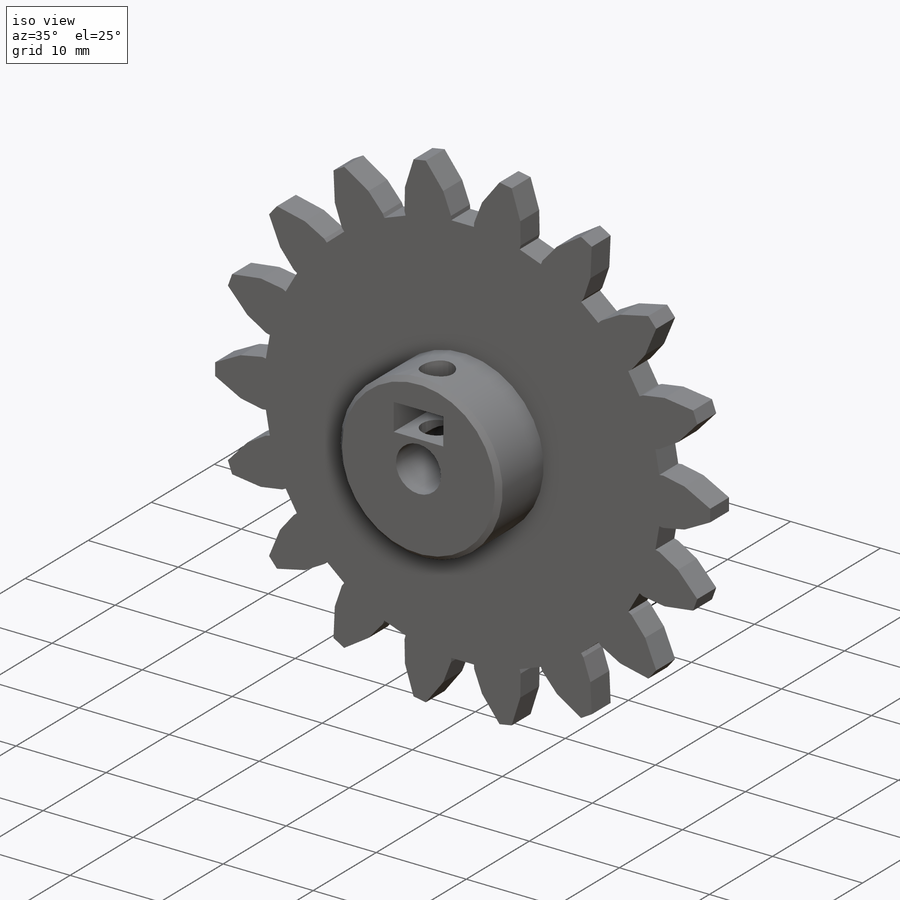
[diagram: iso view]
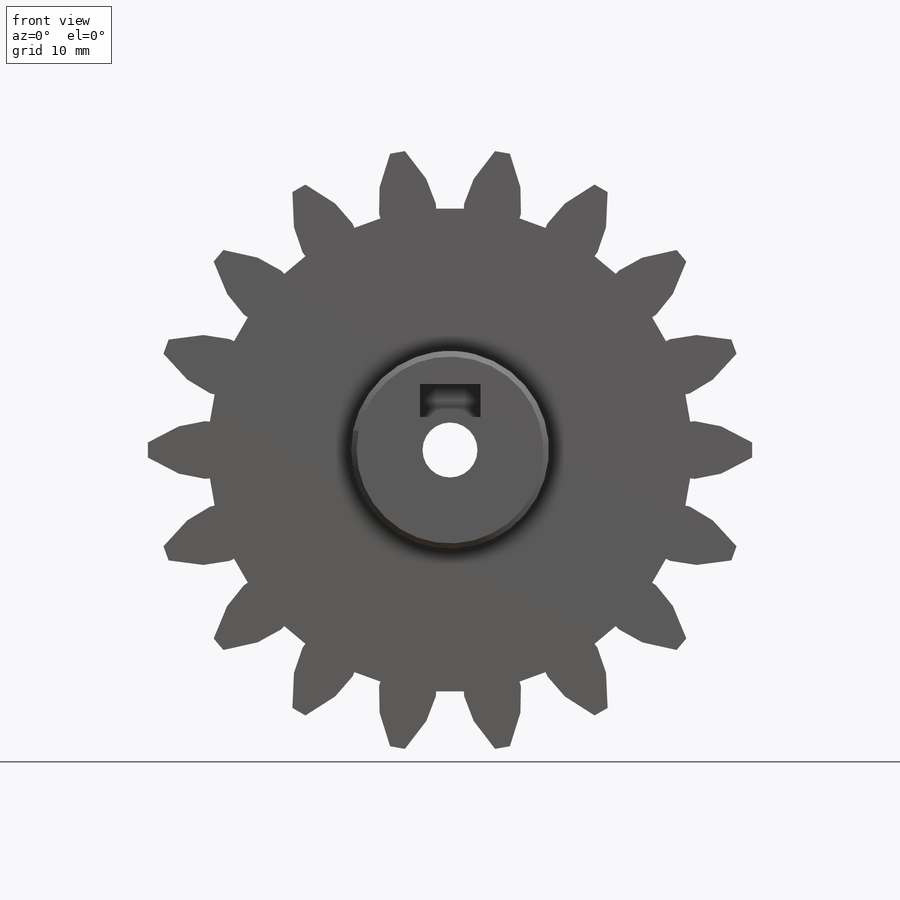
[diagram: front view]
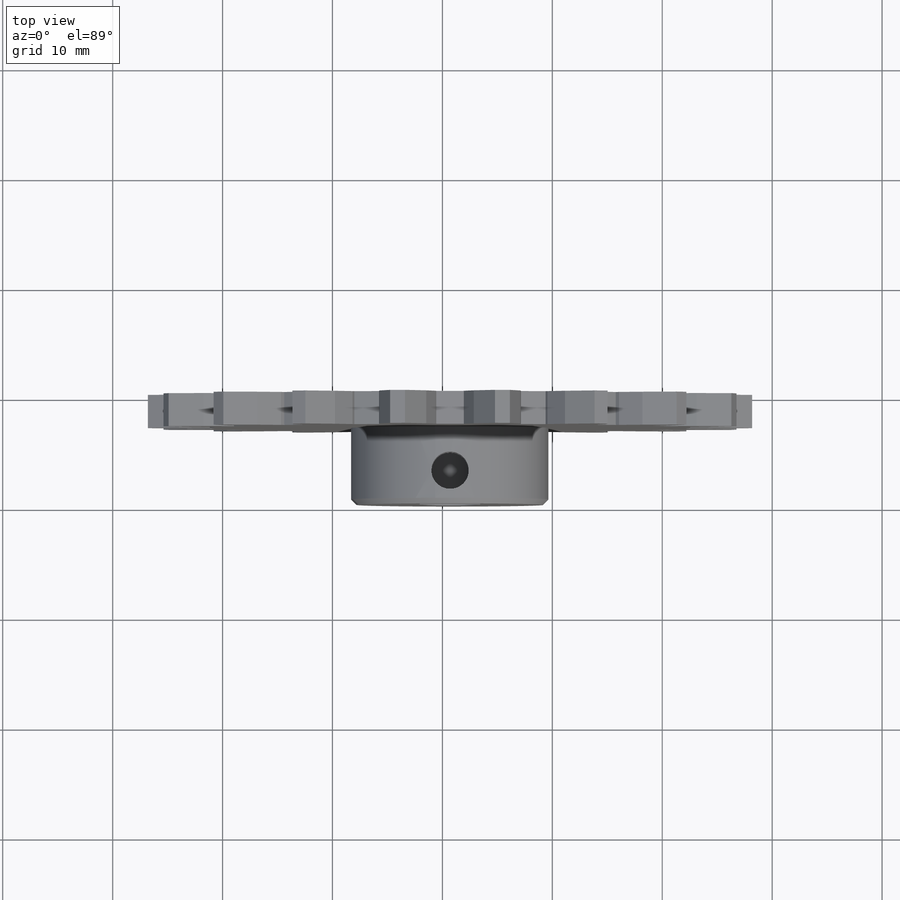
[diagram: top view]
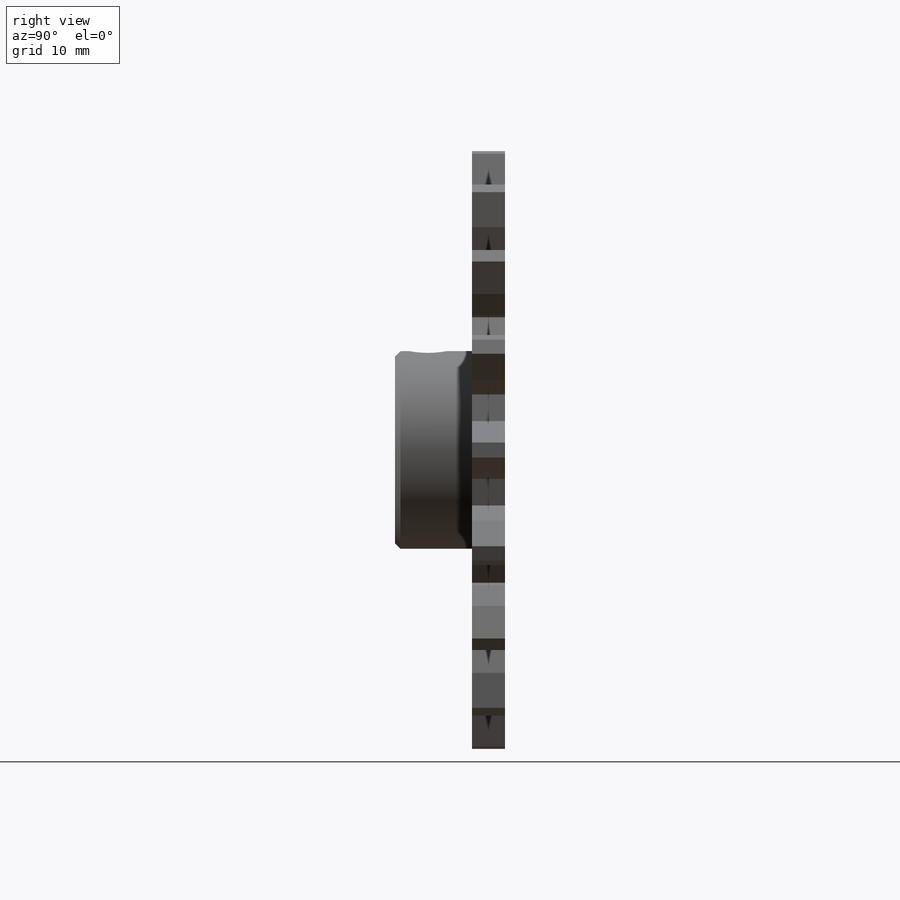
[diagram: right view]
SOLIDWORKS PART (.sldprt)
format: sldprt  version: not decoded by parser v0  size: 351,744 bytes
history: native  units: mm
features: sketch x5, cut_extrude x3, extrude x2, chamfer x2, material x1, plane x1 (+11 scaffold rows collapsed)
feature tree (25):
  scaffold x11  (default folders/planes/origin — collapsed)
  material  "ABS"
  sketch  "Sketch1"
  sketch  "Sketch2"  dims[D1=18.0mm]
  sketch  "Sketch3"  dims[D1=5.0mm]
  extrude  "Boss-Extrude1"  Depth=3mm
  extrude  "Boss-Extrude2"  Depth=7mm
  cut_extrude  "Cut-Extrude1"  [1 undecoded]
  plane  "Plane1"
  sketch  "Sketch4"  dims[D1=3.4mm D2=3.0mm]
  cut_extrude  "Cut-Extrude2"  [1 undecoded]
  sketch  "Sketch6"  dims[D1=5.5mm D2=3.0mm D3=4.5mm]
  cut_extrude  "Cut-Extrude3"  Depth=6mm
  chamfer  "Chamfer1"  Distance=0.5mm Angle=45deg
  chamfer  "Axis2"  [1 undecoded]
decode coverage: 8 of 12 modeling features carry decoded parameters
note: 3 parameter values undecoded
summary: no parameter record found for 3 features
note: suppression state not decoded; provenance and decode notes live in map.json
